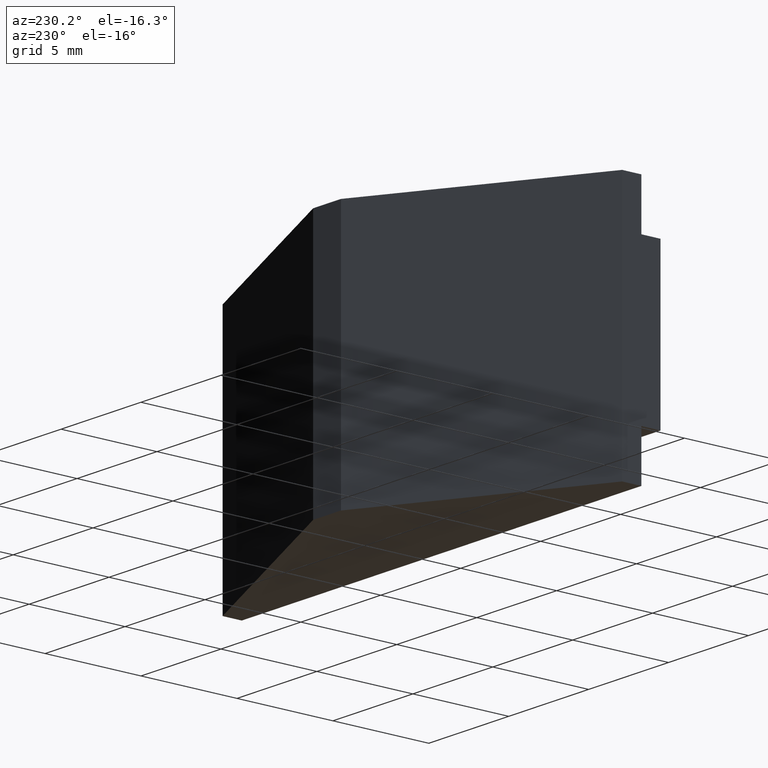
[diagram: clean part render]
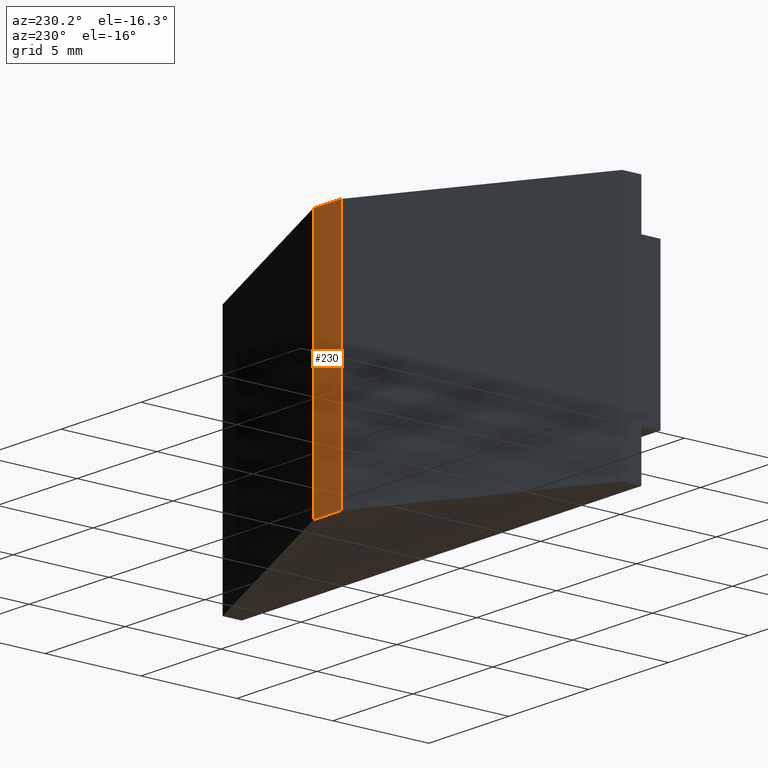
[diagram: same view with one face highlighted and labeled with its STEP entity id]
A machine part, auxiliary view. The second image highlights one B-rep face of the part: STEP entity #230.
In plain terms, the highlighted planar face has unit normal (0, 1, 0).
Its self-contained STEP definition (entity closure, byte-faithful):
#24=FACE_OUTER_BOUND('',#36,.T.);
#36=EDGE_LOOP('',(#197,#198,#199,#200));
#62=LINE('',#373,#92);
#65=LINE('',#379,#95);
#67=LINE('',#382,#97);
#68=LINE('',#384,#98);
#92=VECTOR('',#307,10.);
#95=VECTOR('',#312,10.);
#97=VECTOR('',#316,10.);
#98=VECTOR('',#319,10.);
#115=VERTEX_POINT('',#370);
#116=VERTEX_POINT('',#372);
#117=VERTEX_POINT('',#376);
#118=VERTEX_POINT('',#378);
#142=EDGE_CURVE('',#115,#116,#62,.T.);
#145=EDGE_CURVE('',#117,#118,#65,.T.);
#147=EDGE_CURVE('',#117,#116,#67,.T.);
#148=EDGE_CURVE('',#118,#115,#68,.T.);
#197=ORIENTED_EDGE('',*,*,#147,.T.);
#198=ORIENTED_EDGE('',*,*,#142,.F.);
#199=ORIENTED_EDGE('',*,*,#148,.F.);
#200=ORIENTED_EDGE('',*,*,#145,.F.);
#218=PLANE('',#265);
#230=ADVANCED_FACE('',(#24),#218,.T.);
#265=AXIS2_PLACEMENT_3D('',#383,#317,#318);
#307=DIRECTION('',(-1.,0.,0.));
#312=DIRECTION('',(1.,0.,0.));
#316=DIRECTION('',(0.,0.,1.));
#317=DIRECTION('center_axis',(0.,1.,0.));
#318=DIRECTION('ref_axis',(-1.,0.,0.));
#319=DIRECTION('',(0.,0.,1.));
#370=CARTESIAN_POINT('',(-0.367041523057356,8.,6.5));
#372=CARTESIAN_POINT('',(-2.10769515458674,8.,6.5));
#373=CARTESIAN_POINT('',(-0.367041523057356,8.,6.5));
#376=CARTESIAN_POINT('',(-2.10769515458674,8.,-6.5));
#378=CARTESIAN_POINT('',(-0.367041523057356,8.,-6.5));
#379=CARTESIAN_POINT('',(-0.367041523057356,8.,-6.5));
#382=CARTESIAN_POINT('',(-2.10769515458674,8.,0.));
#383=CARTESIAN_POINT('Origin',(-0.367041523057356,8.,0.));
#384=CARTESIAN_POINT('',(-0.367041523057356,8.,0.));